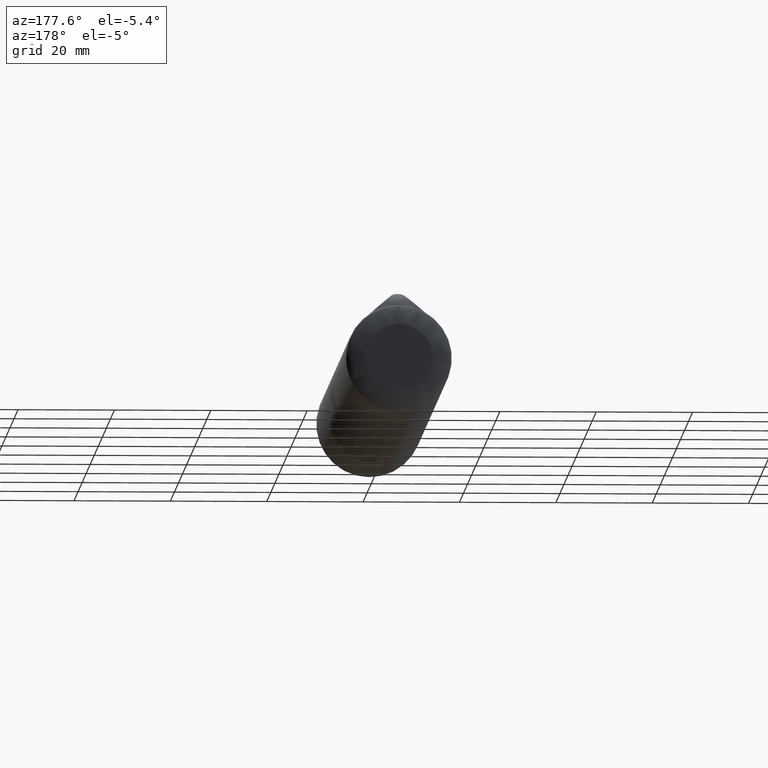
[diagram: clean part render]
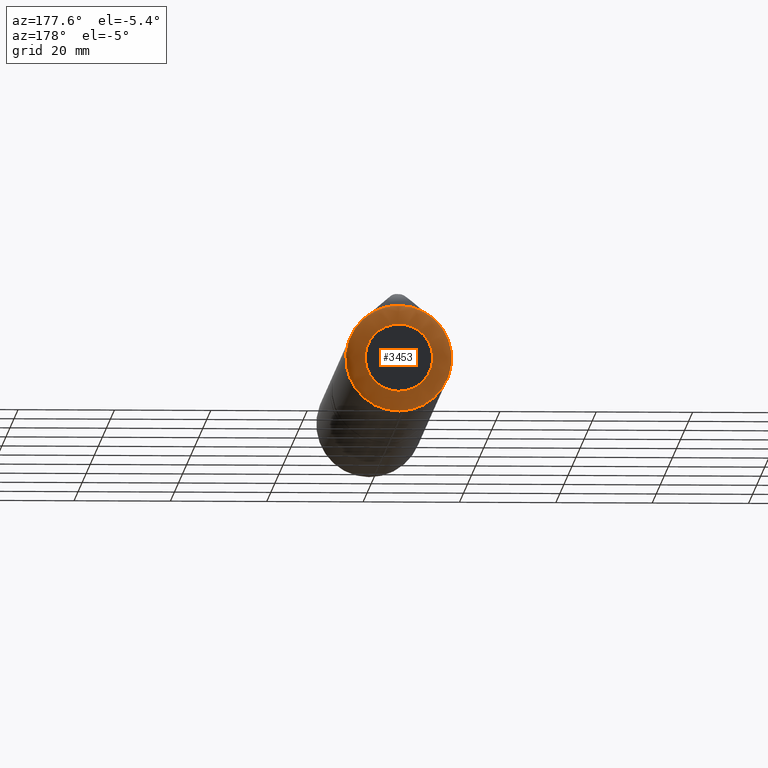
[diagram: same view with one face highlighted and labeled with its STEP entity id]
A machine part, auxiliary view. The second image highlights one B-rep face of the part: STEP entity #3453.
In plain terms, the highlighted face is a freeform B-spline surface patch.
Its self-contained STEP definition (entity closure, byte-faithful):
#23 = CARTESIAN_POINT ( 'NONE',  ( 4.625787255167043810, 35.25000000000000000, -5.273707681444419926 ) ) ;
#65 = CARTESIAN_POINT ( 'NONE',  ( 3.102058443136325394, 35.25000000000000000, 6.291830723625890798 ) ) ;
#135 = CARTESIAN_POINT ( 'NONE',  ( 1.439878833156316373, 35.25000000000000000, 10.92909303284869793 ) ) ;
#171 = CARTESIAN_POINT ( 'NONE',  ( -3.508054720352674849, 35.25000000000000000, 6.074821192298816008 ) ) ;
#177 = CARTESIAN_POINT ( 'NONE',  ( 0.9151893167397422424, 35.25000000000000000, 6.955058901430018814 ) ) ;
#184 = CARTESIAN_POINT ( 'NONE',  ( -6.642874816353176115, 35.25000000000000000, 2.254468891359089344 ) ) ;
#204 = CARTESIAN_POINT ( 'NONE',  ( 5.512657417696892992, 35.25000000000000711, 9.546147587898852649 ) ) ;
#237 = CARTESIAN_POINT ( 'NONE',  ( 6.709887708734360245, 35.25000000000000711, 8.746183882757135208 ) ) ;
#271 = CARTESIAN_POINT ( 'NONE',  ( -2.255509609974966967, 35.25000000000000000, 6.642482731532370899 ) ) ;
#307 = CARTESIAN_POINT ( 'NONE',  ( 2.852108251198488098, 34.25000000000000000, -10.64818313602255095 ) ) ;
#338 = CARTESIAN_POINT ( 'NONE',  ( 2.852108251198634647, 34.25000000000000000, 10.64818313602252253 ) ) ;
#370 = CARTESIAN_POINT ( 'NONE',  ( -2.852108251198643085, 34.25000000000000000, -10.64818313602252253 ) ) ;
#371 = CARTESIAN_POINT ( 'NONE',  ( 6.075408777448162212, 35.25000000000000000, -3.507110490809357994 ) ) ;
#404 = CARTESIAN_POINT ( 'NONE',  ( 10.64818313602252964, 34.25000000000000000, -2.852108251198598232 ) ) ;
#450 = CARTESIAN_POINT ( 'NONE',  ( -5.512657417696904538, 35.24999999999999289, 9.546147587897914732 ) ) ;
#485 = CARTESIAN_POINT ( 'NONE',  ( -10.92909303284852918, 34.25000000000000000, 1.439878833156251314 ) ) ;
#531 = CARTESIAN_POINT ( 'NONE',  ( 2.879226727952087561, 34.24999999999999289, 10.71369944335146052 ) ) ;
#560 = CARTESIAN_POINT ( 'NONE',  ( 0.000000000000000000, 34.25000000000000000, 10.99999999999999822 ) ) ;
#561 = CARTESIAN_POINT ( 'NONE',  ( -6.467156727579001618, 35.25000000000000000, -2.678784026555636189 ) ) ;
#572 = CARTESIAN_POINT ( 'NONE',  ( 11.00000000000000355, 34.25000000000000711, 1.439896632895315998 ) ) ;
#631 = CARTESIAN_POINT ( 'NONE',  ( -7.269094258119763730, 34.25000000000000000, 8.287254927984282205 ) ) ;
#675 = CARTESIAN_POINT ( 'NONE',  ( -8.796335266379980311, 34.25000000000000711, -6.760013919724062958 ) ) ;
#832 = CARTESIAN_POINT ( 'NONE',  ( -6.954877384539779328, 35.25000000000000000, -0.9162865301903128090 ) ) ;
#870 = CARTESIAN_POINT ( 'NONE',  ( -6.074821192299015848, 35.25000000000000000, -3.508054720352674849 ) ) ;
#941 = CARTESIAN_POINT ( 'NONE',  ( -6.955058901430471785, 35.25000000000000000, 0.9151893167390641182 ) ) ;
#978 = CARTESIAN_POINT ( 'NONE',  ( -0.4581489270910582556, 35.25000000000000000, 6.999999999999997335 ) ) ;
#1011 = CARTESIAN_POINT ( 'NONE',  ( 9.546147587898458298, 35.25000000000002132, 5.512657417696889439 ) ) ;
#1015 = CARTESIAN_POINT ( 'NONE',  ( 3.507110490809723924, 35.25000000000000000, 6.075408777447801612 ) ) ;
#1042 = CARTESIAN_POINT ( 'NONE',  ( -9.546147587898312636, 35.24999999999999289, -5.512657417697104378 ) ) ;
#1073 = CARTESIAN_POINT ( 'NONE',  ( -10.99999999999999645, 35.25000000000000000, -0.7199483139988404057 ) ) ;
#1077 = CARTESIAN_POINT ( 'NONE',  ( 6.955129570209595435, 35.25000000000000000, 0.9152033736336273595 ) ) ;
#1114 = CARTESIAN_POINT ( 'NONE',  ( 8.746183882757536665, 35.25000000000002132, 6.709887708734355805 ) ) ;
#1115 = EDGE_CURVE ( 'NONE', #10632, #10632, #5344, .T. ) ;
#1149 = CARTESIAN_POINT ( 'NONE',  ( -3.544372244246481785, 34.25000000000000000, -10.43818714955067328 ) ) ;
#1186 = CARTESIAN_POINT ( 'NONE',  ( 8.746183882757462058, 34.25000000000000000, 6.709887708734306067 ) ) ;
#1187 = CARTESIAN_POINT ( 'NONE',  ( 5.565165794787472642, 35.25000000000000000, -4.270872771465061390 ) ) ;
#1207 = CARTESIAN_POINT ( 'NONE',  ( -3.888991631137219684, 35.25000000000000000, 5.820287286117810766 ) ) ;
#1227 = CARTESIAN_POINT ( 'NONE',  ( -6.709887708734673772, 34.25000000000000000, -8.746183882757213368 ) ) ;
#1230 = CARTESIAN_POINT ( 'NONE',  ( 7.000036026631016206, 35.25000000000000000, -0.4592604700848790800 ) ) ;
#1267 = CARTESIAN_POINT ( 'NONE',  ( 10.92909303284853983, 34.25000000000000000, -1.439878833156207572 ) ) ;
#1269 = CARTESIAN_POINT ( 'NONE',  ( -3.507110490808259318, 35.25000000000000000, -6.075408777449259112 ) ) ;
#1297 = CARTESIAN_POINT ( 'NONE',  ( 10.43818714955072302, 34.25000000000000000, 3.544372244246368098 ) ) ;
#1299 = CARTESIAN_POINT ( 'NONE',  ( 3.103071588164880268, 35.25000000000000000, -6.291372070270171868 ) ) ;
#1413 = CARTESIAN_POINT ( 'NONE',  ( -3.544372244246263293, 34.25000000000000000, 10.43818714955076743 ) ) ;
#1421 = CARTESIAN_POINT ( 'NONE',  ( -10.71369944335147295, 34.25000000000001421, -2.879226727952075571 ) ) ;
#1490 = CARTESIAN_POINT ( 'NONE',  ( 8.796335266379974982, 34.25000000000000711, 6.760013919724064735 ) ) ;
#1527 = CARTESIAN_POINT ( 'NONE',  ( -2.879226727952078679, 34.25000000000000000, -10.71369944335146762 ) ) ;
#1648 = CARTESIAN_POINT ( 'NONE',  ( 6.642482731532250995, 35.25000000000000000, 2.255509609974992280 ) ) ;
#1684 = CARTESIAN_POINT ( 'NONE',  ( -6.999999999999997335, 35.25000000000000000, -0.4581489270901709654 ) ) ;
#1725 = CARTESIAN_POINT ( 'NONE',  ( -6.776116541105243307, 35.25000000000000000, 1.814977978035484663 ) ) ;
#1761 = CARTESIAN_POINT ( 'NONE',  ( -2.255509609975023366, 35.25000000000000000, -6.642482731532327378 ) ) ;
#1828 = CARTESIAN_POINT ( 'NONE',  ( 4.874663267785577681, 35.24999999999999289, -9.887162565697360961 ) ) ;
#1859 = CARTESIAN_POINT ( 'NONE',  ( 8.287254927984198716, 35.25000000000000711, 7.269094258119845442 ) ) ;
#1864 = CARTESIAN_POINT ( 'NONE',  ( 4.949747468305831788, 35.25000000000000000, 4.949747468305831788 ) ) ;
#1897 = CARTESIAN_POINT ( 'NONE',  ( 2.852108251198504973, 35.25000000000000000, 10.64818313602236621 ) ) ;
#1929 = CARTESIAN_POINT ( 'NONE',  ( 9.887162565697396488, 35.25000000000002132, -4.874663267785527054 ) ) ;
#1933 = CARTESIAN_POINT ( 'NONE',  ( 6.075468687546081270, 35.25000000000000000, 3.507150521456826375 ) ) ;
#1965 = CARTESIAN_POINT ( 'NONE',  ( 10.99999999999999645, 35.25000000000000000, -0.7199483139988559488 ) ) ;
#1992 = CARTESIAN_POINT ( 'NONE',  ( -7.269094258119862317, 35.25000000000000711, 8.287254927984379904 ) ) ;
#2029 = CARTESIAN_POINT ( 'NONE',  ( 8.746183882757520678, 34.25000000000000000, -6.709887708734216361 ) ) ;
#2031 = CARTESIAN_POINT ( 'NONE',  ( -2.678784026555617981, 35.25000000000000000, -6.467156727579008724 ) ) ;
#2044 = CARTESIAN_POINT ( 'NONE',  ( -2.678784026555637521, 35.25000000000000000, 6.467156727579001618 ) ) ;
#2058 = CARTESIAN_POINT ( 'NONE',  ( 9.546147587898481390, 34.25000000000000000, -5.512657417697018225 ) ) ;
#2096 = CARTESIAN_POINT ( 'NONE',  ( -4.270872771466159179, 35.25000000000000000, -5.565165794786374853 ) ) ;
#2135 = CARTESIAN_POINT ( 'NONE',  ( -10.92909303284839950, 35.24999999999841549, 1.439878833156126525 ) ) ;
#2139 = CARTESIAN_POINT ( 'NONE',  ( 2.254496464946393885, 35.25000000000000000, -6.642941384887833145 ) ) ;
#2215 = CARTESIAN_POINT ( 'NONE',  ( 1.084202172485504434E-15, 34.25000000000000000, 10.99999999999999822 ) ) ;
#2245 = CARTESIAN_POINT ( 'NONE',  ( -6.775864355435623487, 35.25000000000000000, -1.816061134594772364 ) ) ;
#2253 = CARTESIAN_POINT ( 'NONE',  ( -6.760013919724064735, 34.25000000000000000, -8.796335266379980311 ) ) ;
#2283 = CARTESIAN_POINT ( 'NONE',  ( -8.746183882757293304, 34.25000000000000000, 6.709887708734557421 ) ) ;
#2292 = CARTESIAN_POINT ( 'NONE',  ( -6.760013919724062070, 34.25000000000000000, 8.796335266379980311 ) ) ;
#2323 = CARTESIAN_POINT ( 'NONE',  ( 8.796335266379973206, 34.25000000000000000, -6.760013919724070952 ) ) ;
#2467 = CARTESIAN_POINT ( 'NONE',  ( 6.776116541105301039, 35.25000000000000000, 1.814977978035497985 ) ) ;
#2511 = CARTESIAN_POINT ( 'NONE',  ( 2.255509609974929663, 35.25000000000000000, 6.642482731532118656 ) ) ;
#2550 = CARTESIAN_POINT ( 'NONE',  ( -4.269928541921847120, 35.25000000000000000, -5.565753379936416501 ) ) ;
#2582 = CARTESIAN_POINT ( 'NONE',  ( -3.508054720352572264, 35.25000000000000000, -6.074821192299217465 ) ) ;
#2617 = CARTESIAN_POINT ( 'NONE',  ( 0.9162865301902880510, 35.25000000000000000, 6.954877384539971175 ) ) ;
#2654 = CARTESIAN_POINT ( 'NONE',  ( 1.439878833156333471, 35.25000000000000711, -10.92909303284843681 ) ) ;
#2696 = CARTESIAN_POINT ( 'NONE',  ( 10.43818714955090954, 35.25000000000000711, 3.544372244246446257 ) ) ;
#2731 = CARTESIAN_POINT ( 'NONE',  ( -8.746183882757666339, 35.24999999999999289, -6.709887708734163070 ) ) ;
#2765 = CARTESIAN_POINT ( 'NONE',  ( 9.887162565697401817, 35.25000000000000711, 4.874663267785520837 ) ) ;
#2783 = CARTESIAN_POINT ( 'NONE',  ( -4.949747468305845111, 35.25000000000000000, 4.949747468305816689 ) ) ;
#2802 = CARTESIAN_POINT ( 'NONE',  ( 0.7199483140002336246, 35.25000000000000000, 10.99999999999999645 ) ) ;
#2806 = CARTESIAN_POINT ( 'NONE',  ( 4.624975800904035594, 35.25000000000000000, 5.274468186357402999 ) ) ;
#2814 = CARTESIAN_POINT ( 'NONE',  ( -6.291438638804842221, 35.25000000000000000, 3.103099161752144841 ) ) ;
#2826 = CARTESIAN_POINT ( 'NONE',  ( -6.075408777449301745, 35.25000000000000000, 3.507110490808586611 ) ) ;
#2841 = CARTESIAN_POINT ( 'NONE',  ( -4.874663267785461329, 34.25000000000000000, -9.887162565697645178 ) ) ;
#2859 = CARTESIAN_POINT ( 'NONE',  ( -1.816242467095090518, 35.25000000000000000, 6.775828271371016953 ) ) ;
#2876 = CARTESIAN_POINT ( 'NONE',  ( -9.887162565697437344, 35.25000000000000711, 4.874663267785664722 ) ) ;
#2899 = CARTESIAN_POINT ( 'NONE',  ( -5.820287286117816095, 35.25000000000000000, 3.888991631137211691 ) ) ;
#2915 = CARTESIAN_POINT ( 'NONE',  ( -7.269094258119752183, 34.25000000000000000, -8.287254927984291086 ) ) ;
#2918 = CARTESIAN_POINT ( 'NONE',  ( 4.270832740822348761, 35.25000000000000000, -5.565105884686744275 ) ) ;
#2954 = CARTESIAN_POINT ( 'NONE',  ( 6.709887708734365575, 34.25000000000000000, -8.746183882757417649 ) ) ;
#2956 = CARTESIAN_POINT ( 'NONE',  ( -4.624975800904080891, 35.25000000000000000, -5.274468186357357702 ) ) ;
#3024 = CARTESIAN_POINT ( 'NONE',  ( -0.7199483140002347348, 34.25000000000000000, 10.99999999999999822 ) ) ;
#3026 = CARTESIAN_POINT ( 'NONE',  ( -5.565105884686499138, 35.25000000000000000, -4.270832740822144480 ) ) ;
#3060 = CARTESIAN_POINT ( 'NONE',  ( -6.291372070270219830, 35.25000000000000000, -3.103071588165564609 ) ) ;
#3070 = CARTESIAN_POINT ( 'NONE',  ( 5.539808784079884418, 34.25000000000000000, -9.611650271896836628 ) ) ;
#3099 = CARTESIAN_POINT ( 'NONE',  ( -1.439878833156179816, 34.25000000000000000, 10.92909303284854516 ) ) ;
#3100 = CARTESIAN_POINT ( 'NONE',  ( -6.075468687549123281, 35.25000000000000000, -3.507150521452296221 ) ) ;
#3104 = CARTESIAN_POINT ( 'NONE',  ( 6.760013919724058518, 34.25000000000000711, 8.796335266379983864 ) ) ;
#3135 = CARTESIAN_POINT ( 'NONE',  ( -1.439896632895325101, 34.24999999999999289, -11.00000000000000178 ) ) ;
#3204 = CARTESIAN_POINT ( 'NONE',  ( -1.439896632895319772, 34.24999999999999289, 11.00000000000000000 ) ) ;
#3390 = CARTESIAN_POINT ( 'NONE',  ( -6.642482731532179940, 35.25000000000000000, 2.255509609974946983 ) ) ;
#3428 = CARTESIAN_POINT ( 'NONE',  ( -6.642482731532172835, 35.25000000000000000, -2.255509609974966523 ) ) ;
#3453 = ADVANCED_FACE ( 'NONE', ( #10679, #4538 ), #10862, .T. ) ;
#3465 = CARTESIAN_POINT ( 'NONE',  ( 8.746183882757227579, 35.25000000000000711, -6.709887708734219913 ) ) ;
#3497 = CARTESIAN_POINT ( 'NONE',  ( -6.074821192299020289, 35.25000000000000000, 3.508054720352666855 ) ) ;
#3533 = CARTESIAN_POINT ( 'NONE',  ( 8.287254927984390562, 35.25000000000000711, -7.269094258120250451 ) ) ;
#3570 = CARTESIAN_POINT ( 'NONE',  ( -10.43818714955047433, 35.24999999999999289, -3.544372244246305037 ) ) ;
#3575 = CARTESIAN_POINT ( 'NONE',  ( 1.365632254112897348, 35.25000000000000000, 6.865496962822610350 ) ) ;
#3609 = CARTESIAN_POINT ( 'NONE',  ( 4.874663267785583898, 35.25000000000000711, 9.887162565697687810 ) ) ;
#3641 = CARTESIAN_POINT ( 'NONE',  ( 8.287254927984198716, 34.25000000000000000, 7.269094258119846330 ) ) ;
#3659 = CARTESIAN_POINT ( 'NONE',  ( -2.254496464947628009, 35.25000000000000000, 6.642941384887364187 ) ) ;
#3677 = CARTESIAN_POINT ( 'NONE',  ( 3.544372244246173143, 34.25000000000000000, -10.43818714955080296 ) ) ;
#3702 = CARTESIAN_POINT ( 'NONE',  ( 0.000000000000000000, 35.25000000000000000, 6.999999999999997335 ) ) ;
#3713 = CARTESIAN_POINT ( 'NONE',  ( 3.544372244246424053, 34.25000000000000000, 10.43818714955069815 ) ) ;
#3718 = CARTESIAN_POINT ( 'NONE',  ( -1.365632254112892019, 35.25000000000000000, -6.865496962822612126 ) ) ;
#3746 = CARTESIAN_POINT ( 'NONE',  ( -8.287254927984301744, 34.25000000000000000, -7.269094258119741525 ) ) ;
#3775 = CARTESIAN_POINT ( 'NONE',  ( -9.546147587898389020, 34.25000000000000000, -5.512657417697154116 ) ) ;
#3776 = CARTESIAN_POINT ( 'NONE',  ( 1.816061134592056092, 35.25000000000000000, -6.775864355436347353 ) ) ;
#3816 = CARTESIAN_POINT ( 'NONE',  ( 6.775935024213151969, 35.25000000000000000, -1.816075191491062890 ) ) ;
#3854 = CARTESIAN_POINT ( 'NONE',  ( -10.99999999999999467, 34.24999999999999289, 1.439896632895326656 ) ) ;
#3934 = CARTESIAN_POINT ( 'NONE',  ( -9.611650271896838404, 34.25000000000000000, -5.539808784079884418 ) ) ;
#3964 = CARTESIAN_POINT ( 'NONE',  ( 6.760013919724051412, 34.24999999999999289, -8.796335266379987416 ) ) ;
#3979 = EDGE_CURVE ( 'NONE', #8640, #8640, #10842, .T. ) ;
#4036 = EDGE_LOOP ( 'NONE', ( #6216 ) ) ;
#4117 = CARTESIAN_POINT ( 'NONE',  ( 6.776116541105103863, 35.25000000000000000, -1.814977978035438699 ) ) ;
#4159 = CARTESIAN_POINT ( 'NONE',  ( 1.814977978035451134, 35.25000000000000000, -6.776116541105360547 ) ) ;
#4200 = CARTESIAN_POINT ( 'NONE',  ( 6.074821192299018513, 35.25000000000000000, -3.508054720352771216 ) ) ;
#4240 = CARTESIAN_POINT ( 'NONE',  ( 6.291830723625560395, 35.25000000000000000, -3.102058443136162413 ) ) ;
#4276 = CARTESIAN_POINT ( 'NONE',  ( 4.269928541921856002, 35.25000000000000000, -5.565753379936410283 ) ) ;
#4306 = CARTESIAN_POINT ( 'NONE',  ( 5.512657417697226059, 35.25000000000000711, -9.546147587898762055 ) ) ;
#4321 = ORIENTED_EDGE ( 'NONE', *, *, #1115, .F. ) ;
#4335 = CARTESIAN_POINT ( 'NONE',  ( 3.544372244246390302, 35.25000000000000711, 10.43818714955061644 ) ) ;
#4337 = CARTESIAN_POINT ( 'NONE',  ( 0.4594416624672303384, 35.25000000000000000, 6.999999999999997335 ) ) ;
#4368 = CARTESIAN_POINT ( 'NONE',  ( 0.000000000000000000, 35.25000000000000000, 6.999999999999997335 ) ) ;
#4371 = CARTESIAN_POINT ( 'NONE',  ( 5.565105884689550031, 35.25000000000000000, 4.270832740817600559 ) ) ;
#4385 = CARTESIAN_POINT ( 'NONE',  ( -5.274468186356282118, 35.25000000000000000, 4.624975800904790546 ) ) ;
#4400 = CARTESIAN_POINT ( 'NONE',  ( -5.512657417696616768, 35.25000000000000711, -9.546147587899168840 ) ) ;
#4403 = CARTESIAN_POINT ( 'NONE',  ( 6.642941384885713063, 35.25000000000000000, 2.254496464953516188 ) ) ;
#4436 = CARTESIAN_POINT ( 'NONE',  ( -4.874663267785151355, 35.25000000000000711, -9.887162565697373395 ) ) ;
#4455 = CARTESIAN_POINT ( 'NONE',  ( -4.270832740820661222, 35.25000000000000000, 5.565105884687488569 ) ) ;
#4492 = CARTESIAN_POINT ( 'NONE',  ( -0.4598112897597536053, 35.25000000000000000, 6.999999999999997335 ) ) ;
#4507 = CARTESIAN_POINT ( 'NONE',  ( 5.512657417696758877, 34.25000000000000000, 9.546147587898653697 ) ) ;
#4511 = CARTESIAN_POINT ( 'NONE',  ( -0.4592604700834584941, 35.25000000000000000, -7.000036026631743624 ) ) ;
#4538 = FACE_OUTER_BOUND ( 'NONE', #4036, .T. ) ;
#4540 = CARTESIAN_POINT ( 'NONE',  ( 1.439878833156348570, 34.25000000000000000, -10.92909303284851141 ) ) ;
#4574 = CARTESIAN_POINT ( 'NONE',  ( -8.746183882757589956, 34.25000000000000000, -6.709887708734110667 ) ) ;
#4607 = CARTESIAN_POINT ( 'NONE',  ( -9.546147587898719422, 35.25000000000000711, 5.512657417696495088 ) ) ;
#4753 = CARTESIAN_POINT ( 'NONE',  ( -9.887162565697542149, 34.25000000000000000, 4.874663267785708243 ) ) ;
#4792 = CARTESIAN_POINT ( 'NONE',  ( -10.71369944335147295, 34.25000000000000000, 2.879226727952078235 ) ) ;
#4946 = CARTESIAN_POINT ( 'NONE',  ( 0.9162865301903531101, 35.25000000000000000, -6.954877384539858376 ) ) ;
#4972 = CARTESIAN_POINT ( 'NONE',  ( -6.999963973368978465, 35.25000000000000000, -0.4592604700811517837 ) ) ;
#4988 = CARTESIAN_POINT ( 'NONE',  ( -3.102058443136212595, 35.25000000000000000, -6.291830723625690958 ) ) ;
#5029 = CARTESIAN_POINT ( 'NONE',  ( 2.255509609974942986, 35.25000000000000000, -6.642482731532320273 ) ) ;
#5061 = CARTESIAN_POINT ( 'NONE',  ( -0.9162865301903424520, 35.25000000000000000, -6.954877384540059992 ) ) ;
#5131 = CARTESIAN_POINT ( 'NONE',  ( -4.625787255167075784, 35.25000000000000000, 5.273707681444586015 ) ) ;
#5178 = CARTESIAN_POINT ( 'NONE',  ( 3.103099161749908408, 35.25000000000000000, 6.291438638805595396 ) ) ;
#5211 = CARTESIAN_POINT ( 'NONE',  ( -8.287254927984202268, 35.25000000000000711, -7.269094258119642049 ) ) ;
#5250 = CARTESIAN_POINT ( 'NONE',  ( -10.92909303284839595, 35.25000000000000711, -1.439878833156347904 ) ) ;
#5253 = CARTESIAN_POINT ( 'NONE',  ( 6.775864355435623487, 35.25000000000000000, 1.816061134592178439 ) ) ;
#5297 = CARTESIAN_POINT ( 'NONE',  ( -10.99999999999999645, 35.25000000000000000, 0.7199483139988753777 ) ) ;
#5334 = CARTESIAN_POINT ( 'NONE',  ( 10.99999999999999822, 34.25000000000000000, 0.7199483139988577252 ) ) ;
#5344 = B_SPLINE_CURVE_WITH_KNOTS ( 'NONE', 3,
 ( #2215, #3204, #5595, #9882, #2292, #10696, #8297, #4792, #3854, #7340, #1421, #3934, #675, #2253, #5711, #1527, #3135, #7413, #6536, #3070, #3964, #2323, #6567, #9803, #7449, #572, #9921, #8190, #1490, #3104, #5559, #531, #8264, #6501 ),
 .UNSPECIFIED., .T., .F.,
 ( 4, 2, 2, 2, 2, 2, 2, 2, 2, 2, 2, 2, 2, 2, 2, 2, 4 ),
 ( 0.000000000000000000, 0.06250000000000001388, 0.1250000000000000000, 0.1875000000000000000, 0.2500000000000000000, 0.3124999999999999445, 0.3749999999999999445, 0.4375000000000000000, 0.5000000000000000000, 0.5625000000000000000, 0.6250000000000000000, 0.6875000000000000000, 0.7500000000000000000, 0.8125000000000001110, 0.8750000000000001110, 0.9375000000000001110, 1.000000000000000000 ),
 .UNSPECIFIED. ) ;
#5352 = CARTESIAN_POINT ( 'NONE',  ( -5.565165794786331332, 35.25000000000000000, 4.270872771465836770 ) ) ;
#5369 = CARTESIAN_POINT ( 'NONE',  ( -3.544372244246306813, 35.25000000000000711, 10.43818714955087046 ) ) ;
#5394 = CARTESIAN_POINT ( 'NONE',  ( -6.999999999999997335, 35.25000000000000000, 1.040834085586084257E-14 ) ) ;
#5402 = CARTESIAN_POINT ( 'NONE',  ( -6.709887708734360245, 35.24999999999999289, 8.746183882758060690 ) ) ;
#5405 = CARTESIAN_POINT ( 'NONE',  ( 4.625026750253146801, 35.25000000000000000, -5.274519135708740869 ) ) ;
#5445 = CARTESIAN_POINT ( 'NONE',  ( -9.887162565697586558, 34.25000000000000000, -4.874663267785597220 ) ) ;
#5461 = CARTESIAN_POINT ( 'NONE',  ( 1.347111479062088207E-15, 34.25000000000000000, 10.99999999999999822 ) ) ;
#5474 = CARTESIAN_POINT ( 'NONE',  ( -8.746183882757277317, 35.25000000000000711, 6.709887708734745715 ) ) ;
#5477 = CARTESIAN_POINT ( 'NONE',  ( 6.291438638805336936, 35.25000000000000000, -3.103099161750469737 ) ) ;
#5511 = CARTESIAN_POINT ( 'NONE',  ( 6.642874816352671630, 35.25000000000000000, -2.254468891360788874 ) ) ;
#5559 = CARTESIAN_POINT ( 'NONE',  ( 5.539808784079905735, 34.24999999999999289, 9.611650271896831299 ) ) ;
#5595 = CARTESIAN_POINT ( 'NONE',  ( -2.879226727952073794, 34.25000000000000711, 10.71369944335146940 ) ) ;
#5664 = CARTESIAN_POINT ( 'NONE',  ( -10.64818313602253497, 34.25000000000000000, -2.852108251198573363 ) ) ;
#5704 = CARTESIAN_POINT ( 'NONE',  ( -6.775935024214751579, 35.25000000000000000, 1.816075191486717477 ) ) ;
#5711 = CARTESIAN_POINT ( 'NONE',  ( -5.539808784079891524, 34.25000000000000000, -9.611650271896838404 ) ) ;
#5834 = CARTESIAN_POINT ( 'NONE',  ( -1.814977978035440476, 35.25000000000000000, -6.776116541105164259 ) ) ;
#5876 = CARTESIAN_POINT ( 'NONE',  ( -6.776116541105439595, 35.25000000000000000, -1.814977978035499540 ) ) ;
#5917 = CARTESIAN_POINT ( 'NONE',  ( -7.000036026631016206, 35.25000000000000000, 0.4592604700811726004 ) ) ;
#5954 = CARTESIAN_POINT ( 'NONE',  ( -4.625787255167050915, 35.25000000000000000, -5.273707681444610884 ) ) ;
#5991 = CARTESIAN_POINT ( 'NONE',  ( 3.508054720352675737, 35.25000000000000000, 6.074821192299016737 ) ) ;
#6020 = CARTESIAN_POINT ( 'NONE',  ( 10.64818313602284405, 35.25000000000000711, 2.852108251198795852 ) ) ;
#6056 = CARTESIAN_POINT ( 'NONE',  ( 3.544372244246423609, 35.24999999999999289, -10.43818714955093263 ) ) ;
#6090 = CARTESIAN_POINT ( 'NONE',  ( -1.439878833156317040, 35.25000000000000711, -10.92909303284923439 ) ) ;
#6123 = CARTESIAN_POINT ( 'NONE',  ( 9.546147587898772713, 35.25000000000000711, -5.512657417697014672 ) ) ;
#6159 = CARTESIAN_POINT ( 'NONE',  ( -4.269928541921765408, 35.25000000000000000, 5.565753379936802858 ) ) ;
#6162 = EDGE_LOOP ( 'NONE', ( #4321 ) ) ;
#6200 = CARTESIAN_POINT ( 'NONE',  ( -0.7199483139988565039, 34.25000000000000000, -10.99999999999999822 ) ) ;
#6216 = ORIENTED_EDGE ( 'NONE', *, *, #3979, .F. ) ;
#6237 = CARTESIAN_POINT ( 'NONE',  ( 9.546147587898532905, 34.25000000000000000, 5.512657417696939177 ) ) ;
#6240 = CARTESIAN_POINT ( 'NONE',  ( 5.274468186358507893, 35.25000000000000000, -4.624975800902930700 ) ) ;
#6259 = CARTESIAN_POINT ( 'NONE',  ( -3.103071588163647032, 35.25000000000000000, 6.291372070270638162 ) ) ;
#6270 = CARTESIAN_POINT ( 'NONE',  ( -5.512657417696558149, 34.25000000000000000, -9.546147587898786924 ) ) ;
#6304 = CARTESIAN_POINT ( 'NONE',  ( -4.874663267785695808, 35.25000000000000711, 9.887162565697424910 ) ) ;
#6307 = CARTESIAN_POINT ( 'NONE',  ( 6.467156727579004283, 35.25000000000000000, -2.678784026555629083 ) ) ;
#6341 = CARTESIAN_POINT ( 'NONE',  ( -1.439878833156249538, 35.24999999999841549, 10.92909303284839595 ) ) ;
#6387 = CARTESIAN_POINT ( 'NONE',  ( -2.852108251198670175, 34.25000000000000000, 10.64818313602251720 ) ) ;
#6419 = CARTESIAN_POINT ( 'NONE',  ( -10.92909303284852740, 34.25000000000000000, -1.439878833156274851 ) ) ;
#6456 = CARTESIAN_POINT ( 'NONE',  ( -6.642941384887782519, 35.25000000000000000, -2.254496464945707768 ) ) ;
#6492 = CARTESIAN_POINT ( 'NONE',  ( -10.99999999999999645, 34.25000000000000000, 0.7199483139988754887 ) ) ;
#6495 = CARTESIAN_POINT ( 'NONE',  ( -6.955129570209595435, 35.25000000000000000, -0.9152033736310403178 ) ) ;
#6501 = CARTESIAN_POINT ( 'NONE',  ( 1.084202172485504434E-15, 34.25000000000000000, 10.99999999999999822 ) ) ;
#6530 = CARTESIAN_POINT ( 'NONE',  ( -4.874663267785739329, 34.25000000000000000, 9.887162565697527938 ) ) ;
#6536 = CARTESIAN_POINT ( 'NONE',  ( 2.879226727952075571, 34.24999999999999289, -10.71369944335147117 ) ) ;
#6567 = CARTESIAN_POINT ( 'NONE',  ( 9.611650271896836628, 34.24999999999999289, -5.539808784079889747 ) ) ;
#6694 = CARTESIAN_POINT ( 'NONE',  ( 5.273707681444561146, 35.25000000000000000, 4.625787255167102430 ) ) ;
#6737 = CARTESIAN_POINT ( 'NONE',  ( -6.999999999999997335, 35.25000000000000000, 0.4581489270901933364 ) ) ;
#6776 = CARTESIAN_POINT ( 'NONE',  ( -6.954877384539980945, 35.25000000000000000, 0.9162865301902982651 ) ) ;
#6813 = CARTESIAN_POINT ( 'NONE',  ( 5.565753379936614564, 35.25000000000000000, -4.269928541921649057 ) ) ;
#6846 = CARTESIAN_POINT ( 'NONE',  ( 6.999999999999997335, 35.25000000000000000, -0.4581489270901811794 ) ) ;
#6881 = CARTESIAN_POINT ( 'NONE',  ( -3.102058443136306298, 35.25000000000000000, 6.291830723625632338 ) ) ;
#6920 = CARTESIAN_POINT ( 'NONE',  ( 2.852108251198503197, 35.25000000000000711, -10.64818313602262556 ) ) ;
#6923 = CARTESIAN_POINT ( 'NONE',  ( 3.888991631137215688, 35.25000000000000000, 5.820287286117813430 ) ) ;
#6957 = CARTESIAN_POINT ( 'NONE',  ( -5.565753379936610123, 35.25000000000000000, 4.269928541921758303 ) ) ;
#6962 = CARTESIAN_POINT ( 'NONE',  ( 5.820287286117815206, 35.25000000000000000, 3.888991631137213467 ) ) ;
#6992 = CARTESIAN_POINT ( 'NONE',  ( 10.43818714955090421, 35.25000000000002132, -3.544372244246453363 ) ) ;
#7010 = CARTESIAN_POINT ( 'NONE',  ( -4.625026750255408992, 35.25000000000000000, 5.274519135706843720 ) ) ;
#7026 = CARTESIAN_POINT ( 'NONE',  ( 10.99999999999999645, 35.25000000000000000, 0.7199483139988572811 ) ) ;
#7029 = CARTESIAN_POINT ( 'NONE',  ( 2.254468891361346650, 35.25000000000000000, 6.642874816352414058 ) ) ;
#7063 = CARTESIAN_POINT ( 'NONE',  ( 0.7199483140002338466, 34.25000000000000000, 10.99999999999999822 ) ) ;
#7065 = CARTESIAN_POINT ( 'NONE',  ( 5.820287286117816983, 35.25000000000000000, -3.888991631137209914 ) ) ;
#7086 = CARTESIAN_POINT ( 'NONE',  ( -1.365632254112906674, 35.25000000000000000, 6.865496962822609461 ) ) ;
#7099 = CARTESIAN_POINT ( 'NONE',  ( 10.64818313602252253, 34.25000000000000000, 2.852108251198632427 ) ) ;
#7103 = CARTESIAN_POINT ( 'NONE',  ( -2.254468891359147964, 35.25000000000000000, -6.642874816353399936 ) ) ;
#7138 = CARTESIAN_POINT ( 'NONE',  ( 4.874663267785550147, 34.25000000000000000, 9.887162565697606098 ) ) ;
#7177 = CARTESIAN_POINT ( 'NONE',  ( 7.269094258119939589, 34.25000000000000000, -8.287254927984102792 ) ) ;
#7181 = CARTESIAN_POINT ( 'NONE',  ( -3.888991631137209470, 35.25000000000000000, -5.820287286117816983 ) ) ;
#7216 = CARTESIAN_POINT ( 'NONE',  ( -0.7199483140002344017, 35.25000000000000000, 10.99999999999999645 ) ) ;
#7217 = CARTESIAN_POINT ( 'NONE',  ( 2.678784026555637077, 35.25000000000000000, -6.467156727579002506 ) ) ;
#7251 = CARTESIAN_POINT ( 'NONE',  ( -5.274519135707588013, 35.25000000000000000, -4.625026750254300545 ) ) ;
#7290 = CARTESIAN_POINT ( 'NONE',  ( -5.820287286117811654, 35.25000000000000000, -3.888991631137220129 ) ) ;
#7340 = CARTESIAN_POINT ( 'NONE',  ( -10.99999999999999822, 34.25000000000000000, -1.439896632895321771 ) ) ;
#7413 = CARTESIAN_POINT ( 'NONE',  ( 1.439896632895319772, 34.25000000000000000, -10.99999999999999822 ) ) ;
#7449 = CARTESIAN_POINT ( 'NONE',  ( 11.00000000000000000, 34.25000000000001421, -1.439896632895319106 ) ) ;
#7570 = CARTESIAN_POINT ( 'NONE',  ( 6.954877384539917884, 35.25000000000000000, 0.9162865301903064807 ) ) ;
#7610 = CARTESIAN_POINT ( 'NONE',  ( -5.565753379936605683, 35.25000000000000000, -4.269928541921765408 ) ) ;
#7684 = CARTESIAN_POINT ( 'NONE',  ( 6.999999999999997335, 35.25000000000000000, 0.4581489270901820676 ) ) ;
#7718 = CARTESIAN_POINT ( 'NONE',  ( 0.000000000000000000, 35.25000000000000000, 6.999999999999997335 ) ) ;
#7753 = CARTESIAN_POINT ( 'NONE',  ( -0.9162865301902636261, 35.25000000000000000, 6.954877384539779328 ) ) ;
#7782 = CARTESIAN_POINT ( 'NONE',  ( 0.000000000000000000, 35.25000000000000000, 10.99999999999999645 ) ) ;
#7817 = CARTESIAN_POINT ( 'NONE',  ( 7.269094258119845442, 35.25000000000000711, 8.287254927984198716 ) ) ;
#7856 = CARTESIAN_POINT ( 'NONE',  ( -0.7199483139988561708, 35.25000000000000000, -10.99999999999999645 ) ) ;
#7888 = CARTESIAN_POINT ( 'NONE',  ( 10.92909303284861799, 35.24999999999841549, -1.439878833156124305 ) ) ;
#7892 = CARTESIAN_POINT ( 'NONE',  ( 4.270872771464707007, 35.25000000000000000, 5.565165794787826137 ) ) ;
#7918 = CARTESIAN_POINT ( 'NONE',  ( 10.43818714955071947, 34.25000000000000000, -3.544372244246375647 ) ) ;
#7921 = CARTESIAN_POINT ( 'NONE',  ( 3.507150521452089276, 35.25000000000000000, -6.075468687548877256 ) ) ;
#7958 = CARTESIAN_POINT ( 'NONE',  ( 5.512657417696893880, 34.25000000000000000, -9.546147587898563103 ) ) ;
#7961 = CARTESIAN_POINT ( 'NONE',  ( -3.103099161752087998, 35.25000000000000000, -6.291438638804618400 ) ) ;
#7968 = CARTESIAN_POINT ( 'NONE',  ( -6.467156727579008724, 35.25000000000000000, 2.678784026555617093 ) ) ;
#7995 = CARTESIAN_POINT ( 'NONE',  ( 10.99999999999999822, 34.25000000000000000, -0.7199483139988563929 ) ) ;
#8032 = CARTESIAN_POINT ( 'NONE',  ( 0.000000000000000000, 35.25000000000000000, 10.99999999999999645 ) ) ;
#8034 = CARTESIAN_POINT ( 'NONE',  ( 4.949747468305827347, 35.25000000000000000, -4.949747468305836229 ) ) ;
#8061 = CARTESIAN_POINT ( 'NONE',  ( 1.439878833156185811, 34.25000000000000000, 10.92909303284853983 ) ) ;
#8064 = CARTESIAN_POINT ( 'NONE',  ( 0.4592604700834602149, 35.25000000000000000, -6.999963973368254599 ) ) ;
#8107 = CARTESIAN_POINT ( 'NONE',  ( -10.64818313602254030, 34.25000000000000000, 2.852108251198551159 ) ) ;
#8183 = CARTESIAN_POINT ( 'NONE',  ( -10.43818714955077809, 34.25000000000000000, 3.544372244246231318 ) ) ;
#8190 = CARTESIAN_POINT ( 'NONE',  ( 9.611650271896833075, 34.25000000000000000, 5.539808784079891524 ) ) ;
#8219 = CARTESIAN_POINT ( 'NONE',  ( -6.709887708734063594, 34.25000000000000000, 8.746183882757618377 ) ) ;
#8264 = CARTESIAN_POINT ( 'NONE',  ( 1.439896632895319328, 34.25000000000000000, 10.99999999999999645 ) ) ;
#8297 = CARTESIAN_POINT ( 'NONE',  ( -9.611650271896838404, 34.25000000000000711, 5.539808784079889747 ) ) ;
#8397 = CARTESIAN_POINT ( 'NONE',  ( -6.865496962822612126, 35.25000000000000000, 1.365632254112890687 ) ) ;
#8410 = CARTESIAN_POINT ( 'NONE',  ( -6.291830723625831290, 35.25000000000000000, -3.102058443136305854 ) ) ;
#8448 = CARTESIAN_POINT ( 'NONE',  ( 6.291830723625762012, 35.25000000000000000, 3.102058443136257893 ) ) ;
#8491 = CARTESIAN_POINT ( 'NONE',  ( -5.273707681444617990, 35.25000000000000000, -4.625787255167043810 ) ) ;
#8530 = CARTESIAN_POINT ( 'NONE',  ( 3.508054720352581590, 35.25000000000000000, -6.074821192299211248 ) ) ;
#8558 = CARTESIAN_POINT ( 'NONE',  ( 1.814977978035506423, 35.25000000000000000, 6.776116541105249524 ) ) ;
#8589 = CARTESIAN_POINT ( 'NONE',  ( 0.7199483139988588354, 35.25000000000000000, -10.99999999999999645 ) ) ;
#8621 = CARTESIAN_POINT ( 'NONE',  ( -2.852108251198486322, 35.25000000000000711, -10.64818313602183331 ) ) ;
#8626 = CARTESIAN_POINT ( 'NONE',  ( 5.274519135707627093, 35.25000000000000000, 4.625026750254260577 ) ) ;
#8640 = VERTEX_POINT ( 'NONE', #3702 ) ;
#8659 = CARTESIAN_POINT ( 'NONE',  ( -9.887162565697821037, 35.24999999999999289, -4.874663267785694032 ) ) ;
#8664 = CARTESIAN_POINT ( 'NONE',  ( 6.291372070272299943, 35.25000000000000000, 3.103071588157735317 ) ) ;
#8691 = CARTESIAN_POINT ( 'NONE',  ( 10.64818313602244970, 35.25000000000159162, -2.852108251198681721 ) ) ;
#8695 = CARTESIAN_POINT ( 'NONE',  ( 6.865496962822609461, 35.25000000000000000, 1.365632254112902899 ) ) ;
#8727 = CARTESIAN_POINT ( 'NONE',  ( 6.709887708734491696, 34.25000000000000000, 8.746183882757335937 ) ) ;
#8728 = CARTESIAN_POINT ( 'NONE',  ( 6.999999999999997335, 35.25000000000000000, 0.000000000000000000 ) ) ;
#8748 = CARTESIAN_POINT ( 'NONE',  ( 0.000000000000000000, 35.25000000000000000, 6.999999999999997335 ) ) ;
#8768 = CARTESIAN_POINT ( 'NONE',  ( 8.287254927984093911, 34.25000000000000000, -7.269094258119952912 ) ) ;
#8773 = CARTESIAN_POINT ( 'NONE',  ( 1.365632254112902677, 35.25000000000000000, -6.865496962822608573 ) ) ;
#8803 = CARTESIAN_POINT ( 'NONE',  ( 9.887162565697588335, 34.25000000000000000, 4.874663267785598109 ) ) ;
#8830 = CARTESIAN_POINT ( 'NONE',  ( 9.887162565697583005, 34.25000000000000000, -4.874663267785604326 ) ) ;
#8832 = CARTESIAN_POINT ( 'NONE',  ( 0.9152033736337492620, 35.25000000000000000, -6.955129570208869794 ) ) ;
#8868 = CARTESIAN_POINT ( 'NONE',  ( -1.439878833156159610, 34.25000000000000000, -10.92909303284854694 ) ) ;
#8873 = CARTESIAN_POINT ( 'NONE',  ( -4.949747468305834452, 35.25000000000000000, -4.949747468305829123 ) ) ;
#8911 = CARTESIAN_POINT ( 'NONE',  ( -11.00000000000000000, 34.25000000000000000, -0.7199483139988404057 ) ) ;
#8912 = CARTESIAN_POINT ( 'NONE',  ( 6.955058901432070506, 35.25000000000000000, -0.9151893167347220359 ) ) ;
#8975 = CARTESIAN_POINT ( 'NONE',  ( -9.546147587898703435, 34.25000000000000000, 5.512657417696683382 ) ) ;
#9049 = CARTESIAN_POINT ( 'NONE',  ( -5.512657417697201190, 34.25000000000000000, 9.546147587898358822 ) ) ;
#9209 = CARTESIAN_POINT ( 'NONE',  ( 6.954877384540118612, 35.25000000000000000, -0.9162865301903463378 ) ) ;
#9248 = CARTESIAN_POINT ( 'NONE',  ( 4.269928541921755638, 35.25000000000000000, 5.565753379936611012 ) ) ;
#9292 = CARTESIAN_POINT ( 'NONE',  ( 4.625787255167102430, 35.25000000000000000, 5.273707681444561146 ) ) ;
#9332 = CARTESIAN_POINT ( 'NONE',  ( -6.291830723625839283, 35.25000000000000000, 3.102058443136286314 ) ) ;
#9369 = CARTESIAN_POINT ( 'NONE',  ( 5.273707681444610884, 35.25000000000000000, -4.625787255167249867 ) ) ;
#9403 = CARTESIAN_POINT ( 'NONE',  ( 6.709887708734035172, 35.25000000000000711, -8.746183882757216921 ) ) ;
#9443 = CARTESIAN_POINT ( 'NONE',  ( -3.544372244246793091, 35.25000000000000711, -10.43818714955094507 ) ) ;
#9449 = CARTESIAN_POINT ( 'NONE',  ( 0.000000000000000000, 35.25000000000000000, 6.999999999999997335 ) ) ;
#9478 = CARTESIAN_POINT ( 'NONE',  ( 2.678784026555627307, 35.25000000000000000, 6.467156727579005171 ) ) ;
#9510 = CARTESIAN_POINT ( 'NONE',  ( -1.814977978035549500, 35.25000000000000000, 6.776116541105439595 ) ) ;
#9514 = CARTESIAN_POINT ( 'NONE',  ( 6.467156727579006947, 35.25000000000000000, 2.678784026555625974 ) ) ;
#9534 = CARTESIAN_POINT ( 'NONE',  ( -0.9150220411307226076, 35.25000000000000000, 6.955165654274201970 ) ) ;
#9550 = CARTESIAN_POINT ( 'NONE',  ( 7.269094258119642049, 35.25000000000000711, -8.287254927983806141 ) ) ;
#9554 = CARTESIAN_POINT ( 'NONE',  ( 6.999963973368978465, 35.25000000000000000, 0.4592604700848790800 ) ) ;
#9575 = CARTESIAN_POINT ( 'NONE',  ( -3.507150521453778147, 35.25000000000000000, 6.075468687548132074 ) ) ;
#9589 = CARTESIAN_POINT ( 'NONE',  ( -2.852108251198600453, 35.25000000000159162, 10.64818313602266464 ) ) ;
#9617 = CARTESIAN_POINT ( 'NONE',  ( -10.43818714955088467, 35.25000000000000711, 3.544372244246275283 ) ) ;
#9620 = CARTESIAN_POINT ( 'NONE',  ( 8.673617379884035472E-16, 35.25000000000000000, -6.999999999999999112 ) ) ;
#9655 = CARTESIAN_POINT ( 'NONE',  ( 4.874663267785830811, 34.25000000000000000, -9.887162565697490635 ) ) ;
#9656 = CARTESIAN_POINT ( 'NONE',  ( -1.816075191493350616, 35.25000000000000000, -6.775935024212251356 ) ) ;
#9692 = CARTESIAN_POINT ( 'NONE',  ( 7.269094258119846330, 34.25000000000000000, 8.287254927984198716 ) ) ;
#9728 = CARTESIAN_POINT ( 'NONE',  ( -10.43818714955070881, 34.25000000000000000, -3.544372244246403181 ) ) ;
#9803 = CARTESIAN_POINT ( 'NONE',  ( 10.71369944335146762, 34.24999999999998579, -2.879226727952078235 ) ) ;
#9882 = CARTESIAN_POINT ( 'NONE',  ( -5.539808784079884418, 34.24999999999999289, 9.611650271896836628 ) ) ;
#9921 = CARTESIAN_POINT ( 'NONE',  ( 10.71369944335147295, 34.25000000000001421, 2.879226727952081344 ) ) ;
#10076 = CARTESIAN_POINT ( 'NONE',  ( 3.102058443136331167, 35.25000000000000000, -6.291830723625682964 ) ) ;
#10131 = CARTESIAN_POINT ( 'NONE',  ( 0.4581489270901830113, 35.25000000000000000, -6.999999999999997335 ) ) ;
#10163 = CARTESIAN_POINT ( 'NONE',  ( 5.565753379936612788, 35.25000000000000000, 4.269928541921752974 ) ) ;
#10201 = CARTESIAN_POINT ( 'NONE',  ( 6.074821192299017625, 35.25000000000000000, 3.508054720352673517 ) ) ;
#10234 = CARTESIAN_POINT ( 'NONE',  ( 0.4581489270910577560, 35.25000000000000000, 6.999999999999997335 ) ) ;
#10263 = CARTESIAN_POINT ( 'NONE',  ( -5.273707681444615325, 35.25000000000000000, 4.625787255167047363 ) ) ;
#10291 = CARTESIAN_POINT ( 'NONE',  ( -6.709887708734616929, 35.25000000000000711, -8.746183882756831451 ) ) ;
#10294 = CARTESIAN_POINT ( 'NONE',  ( 1.816075191486052232, 35.25000000000000000, 6.775935024215200997 ) ) ;
#10325 = CARTESIAN_POINT ( 'NONE',  ( 10.92909303284821831, 35.25000000000000711, 1.439878833156040150 ) ) ;
#10364 = CARTESIAN_POINT ( 'NONE',  ( -10.64818313602266464, 35.25000000000000711, -2.852108251198500533 ) ) ;
#10398 = CARTESIAN_POINT ( 'NONE',  ( -7.269094258119851659, 35.25000000000000711, -8.287254927984390562 ) ) ;
#10436 = CARTESIAN_POINT ( 'NONE',  ( -8.287254927984227137, 35.25000000000000711, 7.269094258119617180 ) ) ;
#10472 = CARTESIAN_POINT ( 'NONE',  ( 0.000000000000000000, 34.25000000000000000, 10.99999999999999822 ) ) ;
#10475 = CARTESIAN_POINT ( 'NONE',  ( -0.9151893167324335332, 35.25000000000000000, -6.955058901432972895 ) ) ;
#10512 = CARTESIAN_POINT ( 'NONE',  ( 0.7199483139988591684, 34.25000000000000000, -10.99999999999999822 ) ) ;
#10514 = CARTESIAN_POINT ( 'NONE',  ( 6.865496962822611238, 35.25000000000000000, -1.365632254112892463 ) ) ;
#10545 = CARTESIAN_POINT ( 'NONE',  ( -10.64818313602266997, 35.25000000000159162, 2.852108251198675948 ) ) ;
#10550 = CARTESIAN_POINT ( 'NONE',  ( 3.888991631137218352, 35.25000000000000000, -5.820287286117810766 ) ) ;
#10579 = CARTESIAN_POINT ( 'NONE',  ( 10.92909303284853983, 34.25000000000000000, 1.439878833156203575 ) ) ;
#10632 = VERTEX_POINT ( 'NONE', #5461 ) ;
#10679 = FACE_OUTER_BOUND ( 'NONE', #6162, .T. ) ;
#10689 = CARTESIAN_POINT ( 'NONE',  ( -8.287254927984323061, 34.25000000000000000, 7.269094258119714880 ) ) ;
#10696 = CARTESIAN_POINT ( 'NONE',  ( -8.796335266379978535, 34.25000000000000711, 6.760013919724066511 ) ) ;
#10731 = CARTESIAN_POINT ( 'NONE',  ( -6.865496962822609461, 35.25000000000000000, -1.365632254112906452 ) ) ;
#10842 = B_SPLINE_CURVE_WITH_KNOTS ( 'NONE', 3,
 ( #9449, #4337, #177, #3575, #10294, #7029, #9478, #5178, #1015, #6923, #7892, #2806, #1864, #8626, #4371, #6962, #1933, #8664, #9514, #4403, #5253, #8695, #1077, #9554, #8728, #1230, #8912, #10514, #3816, #5511, #6307, #5477, #371, #7065, #1187, #6240, #8034, #5405, #2918, #10550, #7921, #1299, #7217, #2139, #3776, #8773, #8832, #8064, #9620, #4511, #10475, #3718, #9656, #7103, #2031, #7961, #1269, #7181, #2096, #2956, #8873, #7251, #3026, #7290, #3100, #3060, #561, #6456, #2245, #10731, #6495, #4972, #5394, #5917, #941, #8397, #5704, #184, #7968, #2814, #2826, #2899, #5352, #4385, #2783, #7010, #4455, #1207, #9575, #6259, #2044, #3659, #2859, #7086, #9534, #4492, #8748 ),
 .UNSPECIFIED., .T., .F.,
 ( 4, 3, 3, 3, 3, 3, 3, 3, 3, 3, 3, 3, 3, 3, 3, 3, 3, 3, 3, 3, 3, 3, 3, 3, 3, 3, 3, 3, 3, 3, 3, 3, 4 ),
 ( 0.000000000000000000, 0.03125000000000000000, 0.06250000000000000000, 0.09375000000000000000, 0.1250000000000000000, 0.1562500000000000000, 0.1875000000000000000, 0.2187500000000000000, 0.2500000000000000000, 0.2812500000000000000, 0.3125000000000000000, 0.3437500000000000000, 0.3750000000000000000, 0.4062500000000000000, 0.4375000000000000000, 0.4687500000000000000, 0.5000000000000000000, 0.5312500000000000000, 0.5625000000000000000, 0.5937500000000000000, 0.6250000000000000000, 0.6562500000000000000, 0.6875000000000000000, 0.7187500000000000000, 0.7500000000000000000, 0.7812500000000000000, 0.8125000000000000000, 0.8437500000000000000, 0.8750000000000000000, 0.9062500000000000000, 0.9375000000000000000, 0.9687500000000000000, 1.000000000000000000 ),
 .UNSPECIFIED. ) ;
#10862 =( BOUNDED_SURFACE ( )  B_SPLINE_SURFACE ( 2, 3, ( 
 ( #7718, #10234, #2617, #8558, #2511, #65, #5991, #9248, #9292, #6694, #10163, #10201, #8448, #1648, #2467, #7570, #7684, #6846, #9209, #4117, #10954, #4240, #4200, #6813, #9369, #23, #4276, #8530, #10076, #5029, #4159, #4946, #10131, #10916, #5061, #5834, #1761, #4988, #2582, #2550, #5954, #8491, #7610, #870, #8410, #3428, #5876, #832, #1684, #6737, #6776, #1725, #3390, #9332, #3497, #6957, #10263, #5131, #6159, #171, #6881, #271, #9510, #7753, #978, #4368 ),
 ( #7782, #2802, #135, #1897, #4335, #3609, #204, #237, #7817, #1859, #1114, #1011, #2765, #2696, #6020, #10325, #7026, #1965, #7888, #8691, #6992, #1929, #6123, #3465, #3533, #9550, #9403, #4306, #1828, #6056, #6920, #2654, #8589, #7856, #6090, #8621, #9443, #4436, #4400, #10291, #10398, #5211, #2731, #1042, #8659, #3570, #10364, #5250, #1073, #5297, #2135, #10545, #9617, #2876, #4607, #5474, #10436, #1992, #5402, #450, #6304, #5369, #9589, #6341, #7216, #8032 ),
 ( #10472, #7063, #8061, #338, #3713, #7138, #4507, #8727, #9692, #3641, #1186, #6237, #8803, #1297, #7099, #10579, #5334, #7995, #1267, #404, #7918, #8830, #2058, #2029, #8768, #7177, #2954, #7958, #9655, #3677, #307, #4540, #10512, #6200, #8868, #370, #1149, #2841, #6270, #1227, #2915, #3746, #4574, #3775, #5445, #9728, #5664, #6419, #8911, #6492, #485, #8107, #8183, #4753, #8975, #2283, #10689, #631, #8219, #9049, #6530, #1413, #6387, #3099, #3024, #560 ) ),
 .UNSPECIFIED., .F., .T., .F. ) 
 B_SPLINE_SURFACE_WITH_KNOTS ( ( 3, 3 ),
 ( 4, 2, 2, 2, 2, 2, 2, 2, 2, 2, 2, 2, 2, 2, 2, 2, 2, 2, 2, 2, 2, 2, 2, 2, 2, 2, 2, 2, 2, 2, 2, 2, 4 ),
 ( 0.000000000000000000, 1.000000000000000000 ),
 ( 0.000000000000000000, 0.1963495408493620697, 0.3926990816987241395, 0.5890486225480862092, 0.7853981633974482790, 0.9817477042468103487, 1.178097245096172418, 1.374446785945534488, 1.570796326794896558, 1.767145867644258628, 1.963495408493620697, 2.159844949342982545, 2.356194490192344837, 2.552544031041707129, 2.748893571891068976, 2.945243112740430824, 3.141592653589793116, 3.337942194439155408, 3.534291735288517255, 3.730641276137879103, 3.926990816987241395, 4.123340357836603687, 4.319689898685965090, 4.516039439535327382, 4.712388980384689674, 4.908738521234051966, 5.105088062083414258, 5.301437602932775661, 5.497787143782137953, 5.694136684631500245, 5.890486225480861648, 6.086835766330223940, 6.283185307179586232 ),
 .UNSPECIFIED. ) 
 GEOMETRIC_REPRESENTATION_ITEM ( )  RATIONAL_B_SPLINE_SURFACE ( (
 ( 1.000000000000000000, 1.000000000000000000, 1.000000000000000000, 1.000000000000000000, 1.000000000000000000, 1.000000000000000000, 1.000000000000000000, 1.000000000000000000, 1.000000000000000000, 1.000000000000000000, 1.000000000000000000, 1.000000000000000000, 1.000000000000000000, 1.000000000000000000, 1.000000000000000000, 1.000000000000000000, 1.000000000000000000, 1.000000000000000000, 1.000000000000000000, 1.000000000000000000, 1.000000000000000000, 1.000000000000000000, 1.000000000000000000, 1.000000000000000000, 1.000000000000000000, 1.000000000000000000, 1.000000000000000000, 1.000000000000000000, 1.000000000000000000, 1.000000000000000000, 1.000000000000000000, 1.000000000000000000, 1.000000000000000000, 1.000000000000000000, 1.000000000000000000, 1.000000000000000000, 1.000000000000000000, 1.000000000000000000, 1.000000000000000000, 1.000000000000000000, 1.000000000000000000, 1.000000000000000000, 1.000000000000000000, 1.000000000000000000, 1.000000000000000000, 1.000000000000000000, 1.000000000000000000, 1.000000000000000000, 1.000000000000000000, 1.000000000000000000, 1.000000000000000000, 1.000000000000000000, 1.000000000000000000, 1.000000000000000000, 1.000000000000000000, 1.000000000000000000, 1.000000000000000000, 1.000000000000000000, 1.000000000000000000, 1.000000000000000000, 1.000000000000000000, 1.000000000000000000, 1.000000000000000000, 1.000000000000000000, 1.000000000000000000, 1.000000000000000000),
 ( 0.7071067811865477948, 0.7071067811865477948, 0.7071067811865477948, 0.7071067811865477948, 0.7071067811865475727, 0.7071067811865475727, 0.7071067811865475727, 0.7071067811865475727, 0.7071067811865475727, 0.7071067811865475727, 0.7071067811865477948, 0.7071067811865477948, 0.7071067811865475727, 0.7071067811865475727, 0.7071067811865475727, 0.7071067811865475727, 0.7071067811865477948, 0.7071067811865477948, 0.7071067811865475727, 0.7071067811865475727, 0.7071067811865477948, 0.7071067811865477948, 0.7071067811865475727, 0.7071067811865475727, 0.7071067811865475727, 0.7071067811865475727, 0.7071067811865475727, 0.7071067811865475727, 0.7071067811865474617, 0.7071067811865474617, 0.7071067811865475727, 0.7071067811865475727, 0.7071067811865477948, 0.7071067811865477948, 0.7071067811865475727, 0.7071067811865475727, 0.7071067811865475727, 0.7071067811865475727, 0.7071067811865475727, 0.7071067811865475727, 0.7071067811865475727, 0.7071067811865475727, 0.7071067811865476838, 0.7071067811865476838, 0.7071067811865474617, 0.7071067811865474617, 0.7071067811865475727, 0.7071067811865475727, 0.7071067811865477948, 0.7071067811865477948, 0.7071067811865475727, 0.7071067811865475727, 0.7071067811865475727, 0.7071067811865475727, 0.7071067811865475727, 0.7071067811865475727, 0.7071067811865475727, 0.7071067811865475727, 0.7071067811865476838, 0.7071067811865476838, 0.7071067811865475727, 0.7071067811865475727, 0.7071067811865475727, 0.7071067811865475727, 0.7071067811865477948, 0.7071067811865477948),
 ( 1.000000000000000000, 1.000000000000000000, 1.000000000000000000, 1.000000000000000000, 1.000000000000000000, 1.000000000000000000, 1.000000000000000000, 1.000000000000000000, 1.000000000000000000, 1.000000000000000000, 1.000000000000000000, 1.000000000000000000, 1.000000000000000000, 1.000000000000000000, 1.000000000000000000, 1.000000000000000000, 1.000000000000000000, 1.000000000000000000, 1.000000000000000000, 1.000000000000000000, 1.000000000000000000, 1.000000000000000000, 1.000000000000000000, 1.000000000000000000, 1.000000000000000000, 1.000000000000000000, 1.000000000000000000, 1.000000000000000000, 1.000000000000000000, 1.000000000000000000, 1.000000000000000000, 1.000000000000000000, 1.000000000000000000, 1.000000000000000000, 1.000000000000000000, 1.000000000000000000, 1.000000000000000000, 1.000000000000000000, 1.000000000000000000, 1.000000000000000000, 1.000000000000000000, 1.000000000000000000, 1.000000000000000000, 1.000000000000000000, 1.000000000000000000, 1.000000000000000000, 1.000000000000000000, 1.000000000000000000, 1.000000000000000000, 1.000000000000000000, 1.000000000000000000, 1.000000000000000000, 1.000000000000000000, 1.000000000000000000, 1.000000000000000000, 1.000000000000000000, 1.000000000000000000, 1.000000000000000000, 1.000000000000000000, 1.000000000000000000, 1.000000000000000000, 1.000000000000000000, 1.000000000000000000, 1.000000000000000000, 1.000000000000000000, 1.000000000000000000) ) ) 
 REPRESENTATION_ITEM ( '' )  SURFACE ( )  );
#10916 = CARTESIAN_POINT ( 'NONE',  ( -0.4581489270901812905, 35.25000000000000000, -6.999999999999997335 ) ) ;
#10954 = CARTESIAN_POINT ( 'NONE',  ( 6.642482731532447282, 35.25000000000000000, -2.255509609975096641 ) ) ;